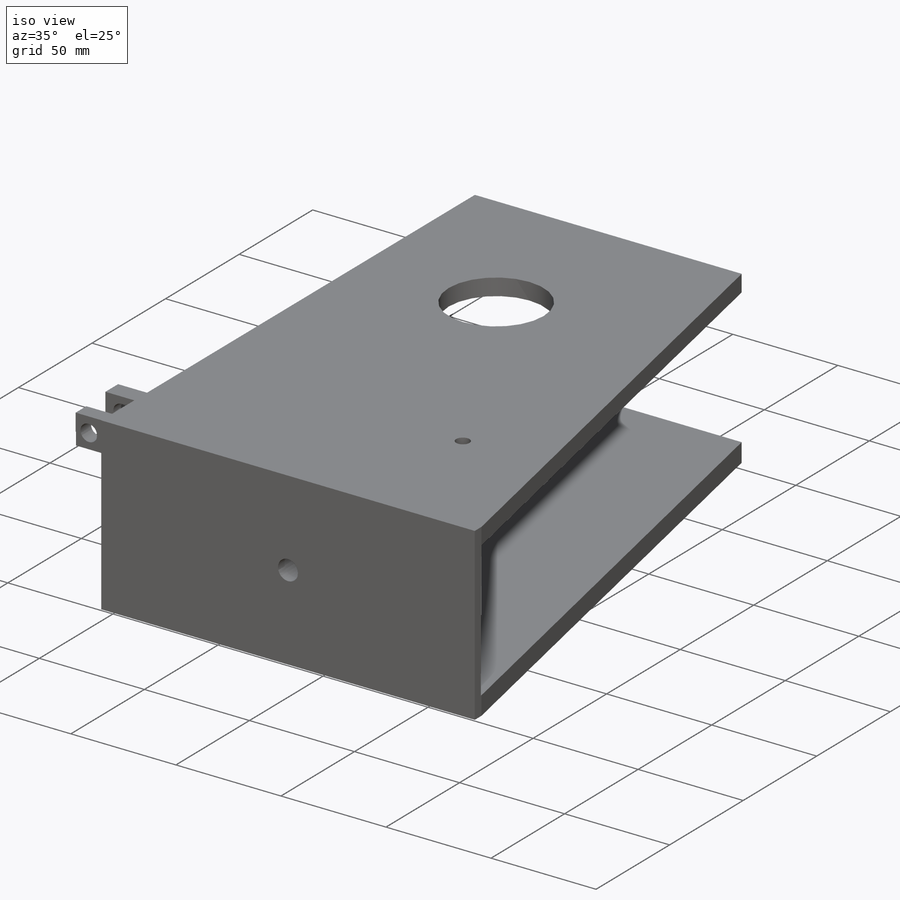
[diagram: iso view]
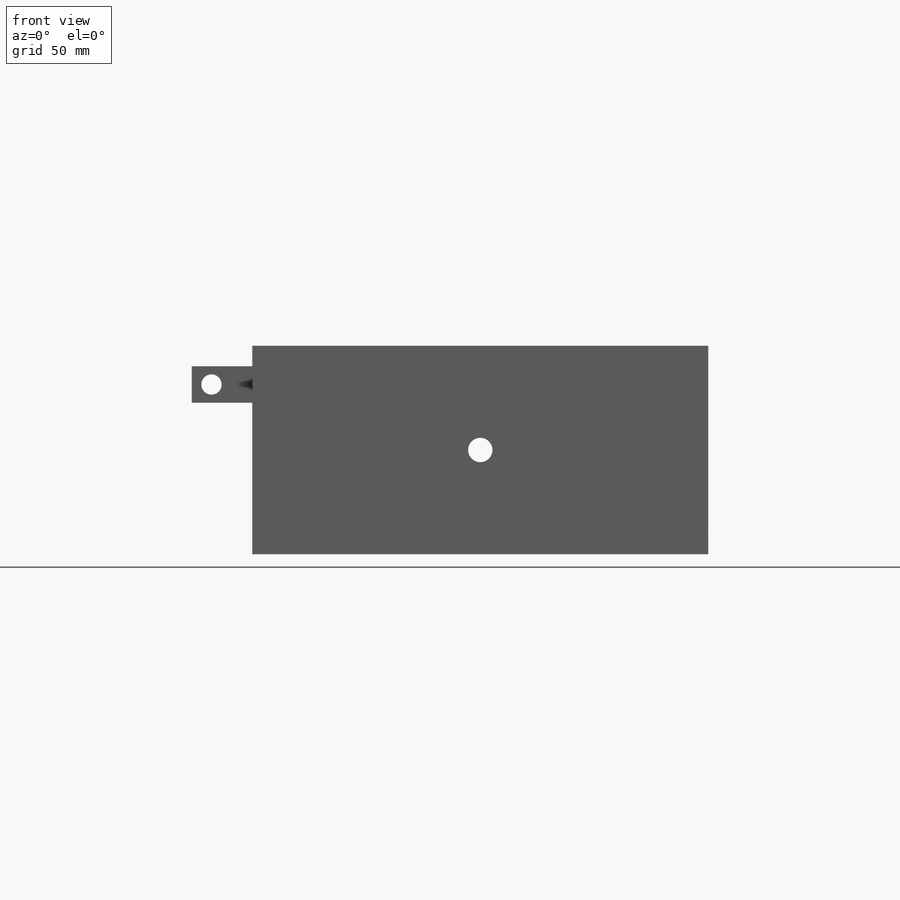
[diagram: front view]
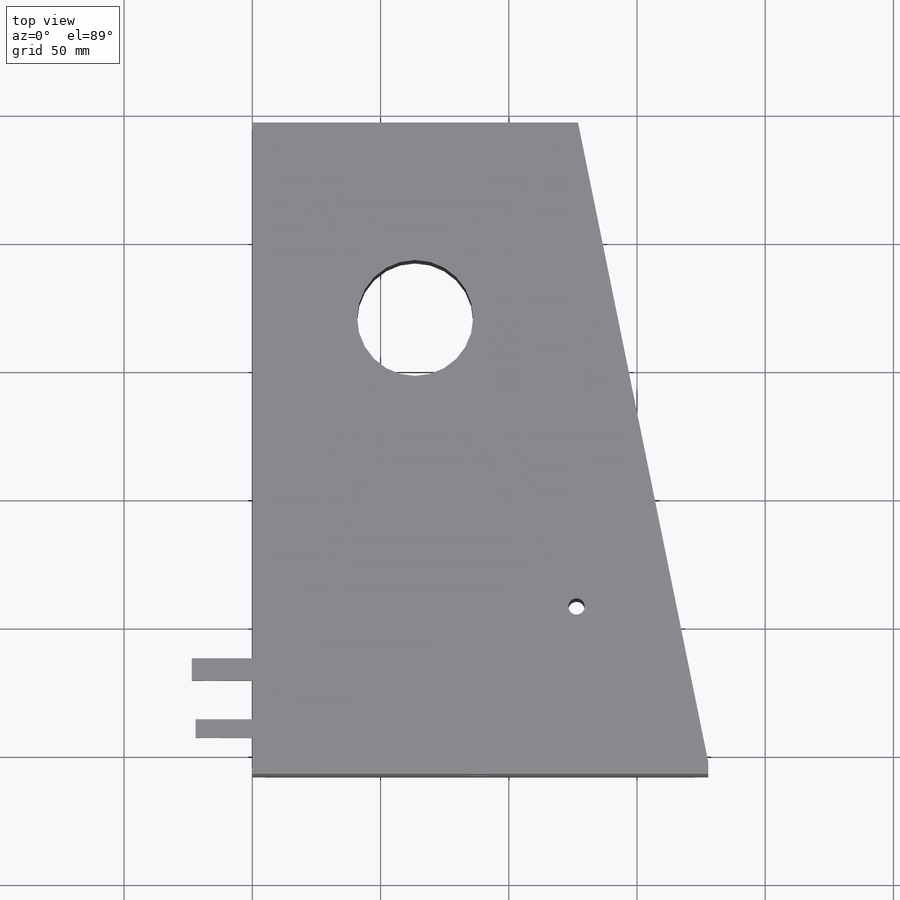
[diagram: top view]
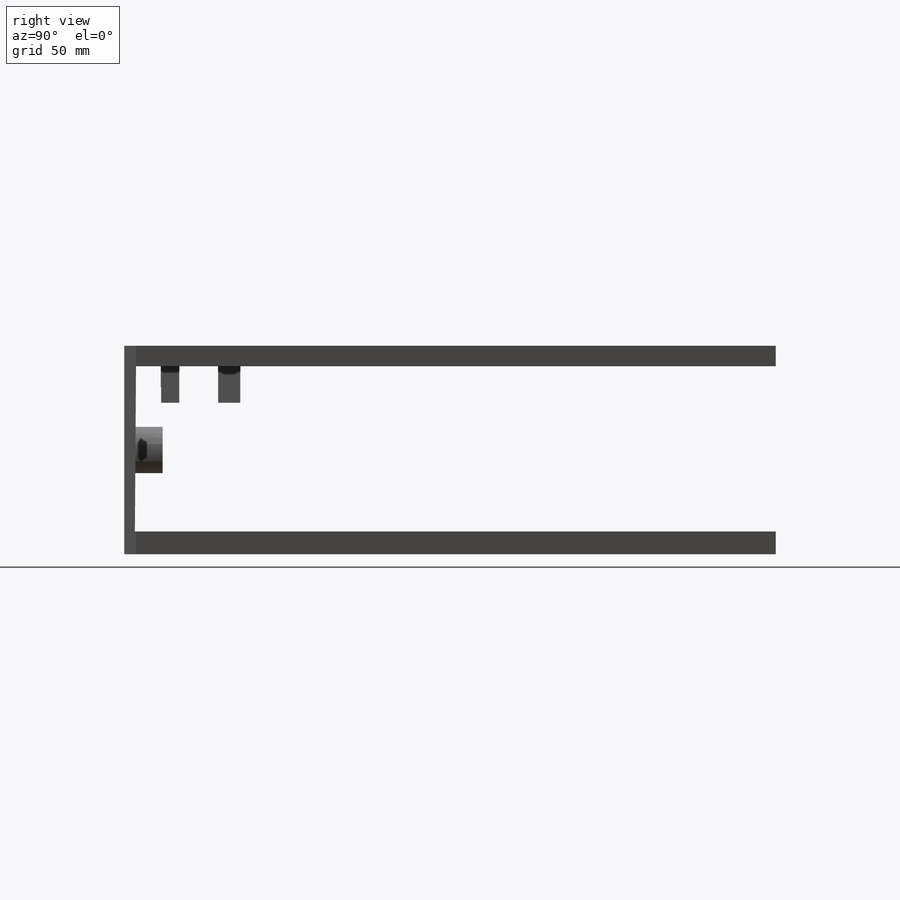
[diagram: right view]
SOLIDWORKS PART (.sldprt)
format: sldprt  version: not decoded by parser v0  size: 386,560 bytes
history: native  units: mm
features: sketch x24, cut_extrude x14, extrude x10, plane x3, material x1 (+8 scaffold rows collapsed)
feature tree (60):
  scaffold x8  (default folders/planes/origin — collapsed)
  material  "Material <sin especificar>"
  plane  "Alzado"
  plane  "Planta"
  plane  "Vista lateral"
  sketch  "Croquis1"  dims[D1=254.0mm D2=127.0mm D3=177.8mm]
  extrude  "Saliente-Extruir1"  Depth=4.572mm
  sketch  "Croquis2"  dims[D1=76.2mm D2=4.572mm]
  extrude  "Saliente-Extruir2"  Depth=177.8mm
  sketch  "Croquis3"
  extrude  "Saliente-Extruir3"  Depth=76.2mm
  sketch  "Croquis4"
  cut_extrude  "Cortar-Extruir5"  Depth=208.534mm
  sketch  "Croquis5"  dims[c1.D2=25.4mm c1.D1=76.2mm c2.D2=63.5mm]
  cut_extrude  "Cortar-Extruir6"  Depth=50.038mm
  sketch  "Croquis6"  dims[D1=45.212mm]
  cut_extrude  "Cortar-Extruir12"  Depth=97.282mm
  sketch  "Croquis7"
  cut_extrude  "Cortar-Extruir13"  Depth=177.8mm
  sketch  "Croquis8"  dims[D1=16.002mm]
  extrude  "Saliente-Extruir8"  Depth=18.034mm
  sketch  "Croquis9"  dims[D1=16.002mm]
  extrude  "Saliente-Extruir9"  Depth=19.558mm
  sketch  "Croquis10"
  cut_extrude  "Cortar-Extruir14"  Depth=261.874mm
  sketch  "Croquis11"
  cut_extrude  "Cortar-Extruir15"  Depth=422.402mm
  sketch  "Croquis12"  dims[D1=16.002mm]
  extrude  "Saliente-Extruir10"  Depth=118.618mm
  sketch  "Croquis13"
  cut_extrude  "Cortar-Extruir16"  Depth=300.99mm
  sketch  "Croquis14"
  cut_extrude  "Cortar-Extruir17"  Depth=262.89mm
  sketch  "Croquis15"  dims[D1=6.35mm]
  cut_extrude  "Cortar-Extruir18"  Depth=120.142mm
  sketch  "Croquis16"  dims[D1=9.525mm]
  cut_extrude  "Cortar-Extruir20"  Depth=446.532mm
  sketch  "Croquis20"
  extrude  "Saliente-Extruir12"  Depth=206.502mm
  sketch  "Croquis22"
  cut_extrude  "Cortar-Extruir21"  Depth=252.984mm
  sketch  "Croquis23"
  cut_extrude  "Cortar-Extruir22"  Depth=336.55mm
  sketch  "Croquis24"
  extrude  "Saliente-Extruir13"  Depth=22.098mm
  sketch  "Croquis25"
  extrude  "Saliente-Extruir14"  Depth=193.548mm
  sketch  "Croquis26"
  cut_extrude  "Cortar-Extruir23"  Depth=184.658mm
  sketch  "Croquis27"
  extrude  "Saliente-Extruir15"  Depth=23.622mm
  sketch  "Croquis28"  dims[D1=~7.94512mm]
  cut_extrude  "Cortar-Extruir24"  Depth=207.01mm
decode coverage: 34 of 48 modeling features carry decoded parameters
note: ~ marks probable driven/reference dimensions
note: suppression state not decoded; provenance and decode notes live in map.json
